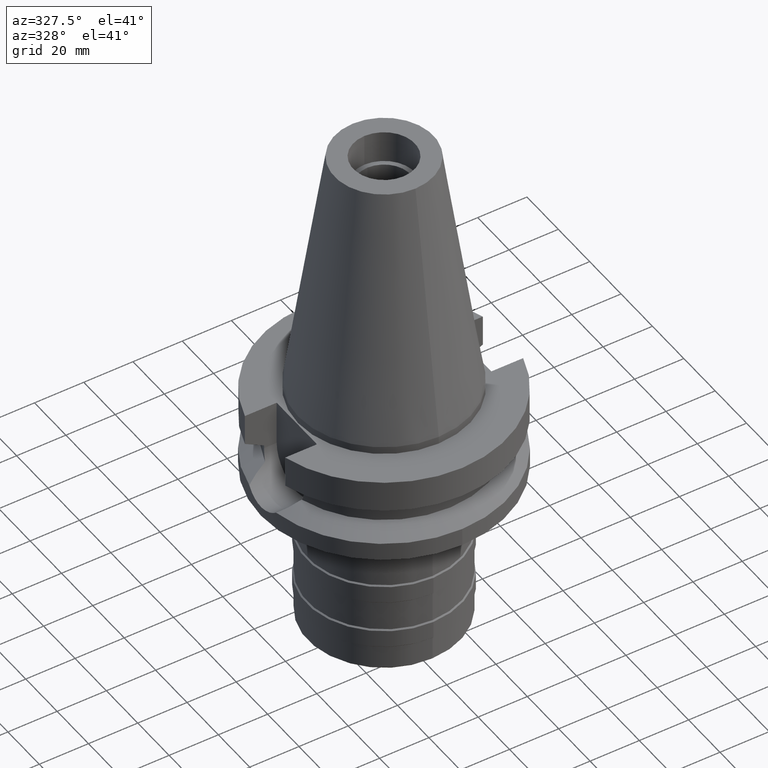
[diagram: clean part render]
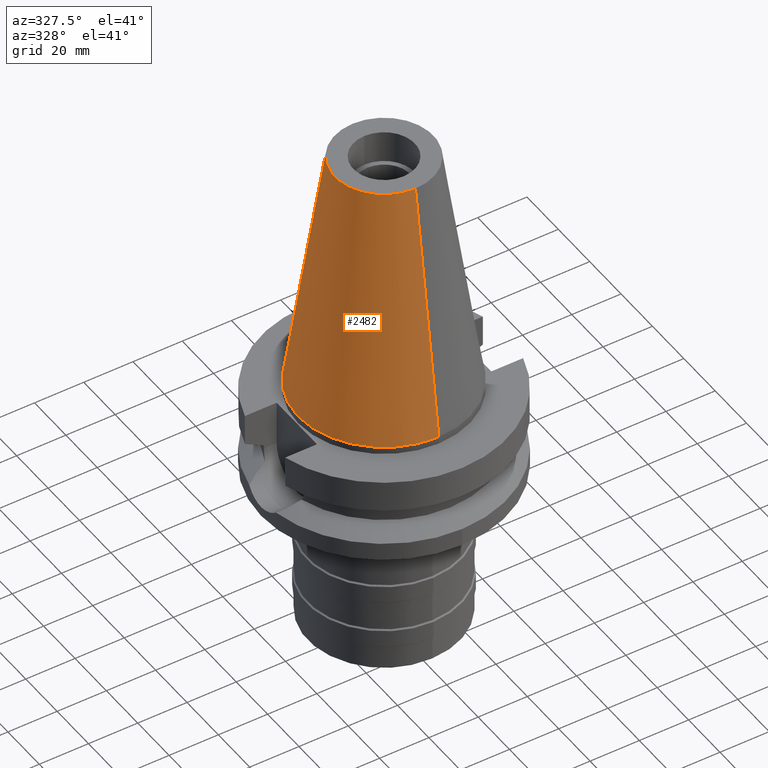
[diagram: same view with one face highlighted and labeled with its STEP entity id]
A machine part, auxiliary view. The second image highlights one B-rep face of the part: STEP entity #2482.
In plain terms, the highlighted conical surface has half-angle 8.297 deg.
Its self-contained STEP definition (entity closure, byte-faithful):
#1218=DIRECTION('',(0.E0,-1.443043893539E-1,-9.895333461856E-1));
#1219=VECTOR('',#1218,1.028767755957E2);
#1220=CARTESIAN_POINT('',(0.E0,-2.007942971896E1,1.018E2));
#1221=LINE('',#1220,#1219);
#1225=CARTESIAN_POINT('',(0.E0,1.847992019913E-14,3.979039320257E-13));
#1226=DIRECTION('',(0.E0,0.E0,-1.E0));
#1227=DIRECTION('',(0.E0,-1.E0,0.E0));
#1228=AXIS2_PLACEMENT_3D('',#1225,#1226,#1227);
#1233=DIRECTION('',(0.E0,1.443043893539E-1,-9.895333461856E-1));
#1234=VECTOR('',#1233,1.028767755957E2);
#1235=CARTESIAN_POINT('',(0.E0,2.007942971896E1,1.018E2));
#1236=LINE('',#1235,#1234);
#1248=CARTESIAN_POINT('',(0.E0,1.847992019913E-14,1.018E2));
#1249=DIRECTION('',(0.E0,0.E0,-1.E0));
#1250=DIRECTION('',(0.E0,-1.E0,0.E0));
#1251=AXIS2_PLACEMENT_3D('',#1248,#1249,#1250);
#1457=CARTESIAN_POINT('',(0.E0,3.4925E1,4.902744876745E-13));
#1458=VERTEX_POINT('',#1457);
#1459=CARTESIAN_POINT('',(0.E0,-3.4925E1,4.902744876745E-13));
#1460=VERTEX_POINT('',#1459);
#1461=CARTESIAN_POINT('',(0.E0,2.007942971896E1,1.018E2));
#1462=VERTEX_POINT('',#1461);
#1463=CARTESIAN_POINT('',(0.E0,-2.007942971896E1,1.018E2));
#1464=VERTEX_POINT('',#1463);
#2468=CARTESIAN_POINT('',(0.E0,1.847992019913E-14,5.09E1));
#2469=DIRECTION('',(0.E0,0.E0,-1.E0));
#2470=DIRECTION('',(0.E0,-1.E0,0.E0));
#2471=AXIS2_PLACEMENT_3D('',#2468,#2469,#2470);
#2472=CONICAL_SURFACE('',#2471,2.750221485948E1,8.297E0);
#2474=ORIENTED_EDGE('',*,*,#2473,.F.);
#2476=ORIENTED_EDGE('',*,*,#2475,.F.);
#2478=ORIENTED_EDGE('',*,*,#2477,.T.);
#2479=ORIENTED_EDGE('',*,*,#2461,.T.);
#2480=EDGE_LOOP('',(#2474,#2476,#2478,#2479));
#2481=FACE_OUTER_BOUND('',#2480,.F.);
#1229=CIRCLE('',#1228,3.4925E1);
#1252=CIRCLE('',#1251,2.007942971896E1);
#2461=EDGE_CURVE('',#1460,#1458,#1229,.T.);
#2473=EDGE_CURVE('',#1462,#1458,#1236,.T.);
#2475=EDGE_CURVE('',#1464,#1462,#1252,.T.);
#2477=EDGE_CURVE('',#1464,#1460,#1221,.T.);
#2482=ADVANCED_FACE('',(#2481),#2472,.T.);